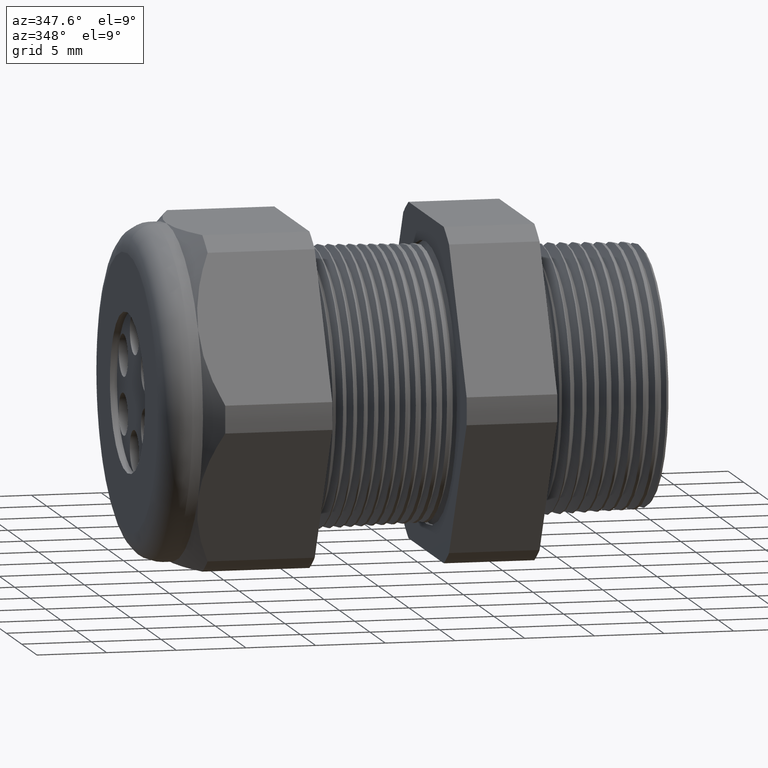
[diagram: clean part render]
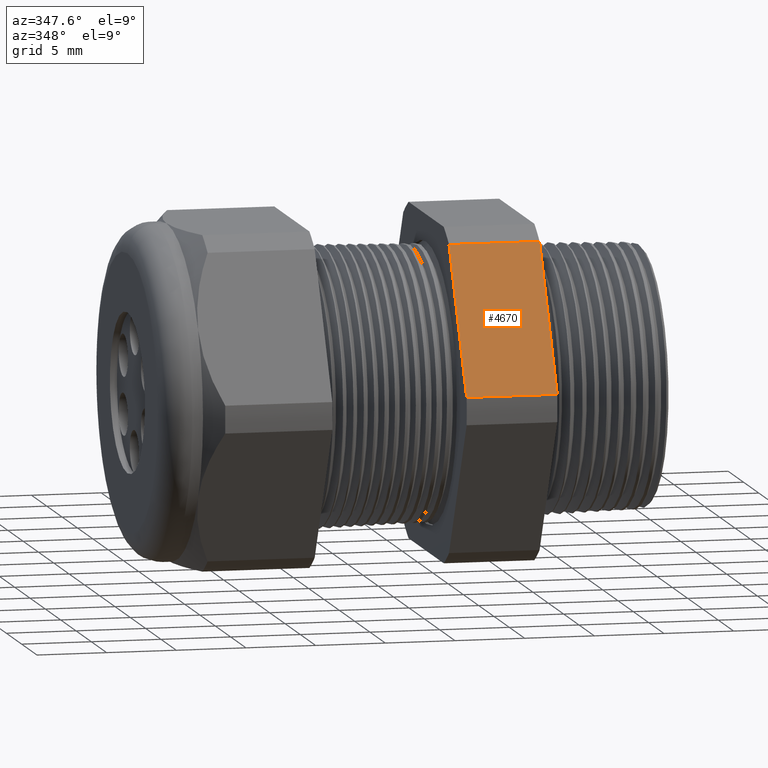
[diagram: same view with one face highlighted and labeled with its STEP entity id]
A machine part, auxiliary view. The second image highlights one B-rep face of the part: STEP entity #4670.
In plain terms, the highlighted planar face has unit normal (0, -0.866, 0.5).
Its self-contained STEP definition (entity closure, byte-faithful):
#2126 = CARTESIAN_POINT ( 'NONE',  ( -0.3100000000000000000, -0.5202473208008777700, 0.03890520787129464500 ) ) ;
#2127 = DIRECTION ( 'NONE',  ( 0.0000000000000000000, -0.4999999999999998300, -0.8660254037844388200 ) ) ;
#2128 = VECTOR ( 'NONE', #2127, 39.37007874015748100 ) ;
#2129 = CARTESIAN_POINT ( 'NONE',  ( -0.3100000000000000000, -0.1720319397786862800, 0.6420319397786858900 ) ) ;
#2130 = LINE ( 'NONE', #2129, #2128 ) ;
#2147 = CARTESIAN_POINT ( 'NONE',  ( -0.3100000000000000000, -0.2938165587564945900, 0.4310947921287050500 ) ) ;
#2359 = PLANE ( 'NONE',  #2424 ) ;
#2360 = LINE ( 'NONE', #2420, #2419 ) ;
#2361 = FACE_OUTER_BOUND ( 'NONE', #4671, .T. ) ;
#2362 = CARTESIAN_POINT ( 'NONE',  ( -0.5659055118110234400, -0.2938165587564945900, 0.4310947921287050500 ) ) ;
#2363 = DIRECTION ( 'NONE',  ( 0.0000000000000000000, 0.4999999999999998300, 0.8660254037844388200 ) ) ;
#2364 = VECTOR ( 'NONE', #2363, 39.37007874015748100 ) ;
#2365 = CARTESIAN_POINT ( 'NONE',  ( -0.5659055118110234400, -0.1720319397786862800, 0.6420319397786858900 ) ) ;
#2366 = LINE ( 'NONE', #2365, #2364 ) ;
#2367 = CARTESIAN_POINT ( 'NONE',  ( -0.5659055118110234400, -0.5202473208008777700, 0.03890520787129464500 ) ) ;
#2418 = DIRECTION ( 'NONE',  ( -1.000000000000000000, 0.0000000000000000000, 0.0000000000000000000 ) ) ;
#2419 = VECTOR ( 'NONE', #2418, 39.37007874015748100 ) ;
#2420 = CARTESIAN_POINT ( 'NONE',  ( 0.03999999999999984800, -0.5202473208008777700, 0.03890520787129464500 ) ) ;
#2421 = DIRECTION ( 'NONE',  ( 0.0000000000000000000, -0.4999999999999998300, -0.8660254037844388200 ) ) ;
#2422 = DIRECTION ( 'NONE',  ( 0.0000000000000000000, -0.8660254037844388200, 0.4999999999999998300 ) ) ;
#2423 = CARTESIAN_POINT ( 'NONE',  ( 0.03999999999999984800, -0.5202473208008777700, 0.03890520787129467300 ) ) ;
#2424 = AXIS2_PLACEMENT_3D ( 'NONE', #2423, #2422, #2421 ) ;
#2518 = DIRECTION ( 'NONE',  ( -1.000000000000000000, 0.0000000000000000000, 0.0000000000000000000 ) ) ;
#2519 = VECTOR ( 'NONE', #2518, 39.37007874015748100 ) ;
#2520 = CARTESIAN_POINT ( 'NONE',  ( 0.03999999999999984800, -0.2938165587564945900, 0.4310947921287050500 ) ) ;
#2521 = LINE ( 'NONE', #2520, #2519 ) ;
#4508 = EDGE_CURVE ( 'NONE', #4532, #4509, #2130, .T. ) ;
#4509 = VERTEX_POINT ( 'NONE', #2126 ) ;
#4532 = VERTEX_POINT ( 'NONE', #2147 ) ;
#4663 = VERTEX_POINT ( 'NONE', #2367 ) ;
#4665 = EDGE_CURVE ( 'NONE', #4663, #4666, #2366, .T. ) ;
#4666 = VERTEX_POINT ( 'NONE', #2362 ) ;
#4670 = ADVANCED_FACE ( 'NONE', ( #2361 ), #2359, .T. ) ;
#4671 = EDGE_LOOP ( 'NONE', ( #4672, #4673, #4674, #4676 ) ) ;
#4672 = ORIENTED_EDGE ( 'NONE', *, *, #4743, .T. ) ;
#4673 = ORIENTED_EDGE ( 'NONE', *, *, #4665, .F. ) ;
#4674 = ORIENTED_EDGE ( 'NONE', *, *, #4675, .F. ) ;
#4675 = EDGE_CURVE ( 'NONE', #4509, #4663, #2360, .T. ) ;
#4676 = ORIENTED_EDGE ( 'NONE', *, *, #4508, .F. ) ;
#4743 = EDGE_CURVE ( 'NONE', #4532, #4666, #2521, .T. ) ;